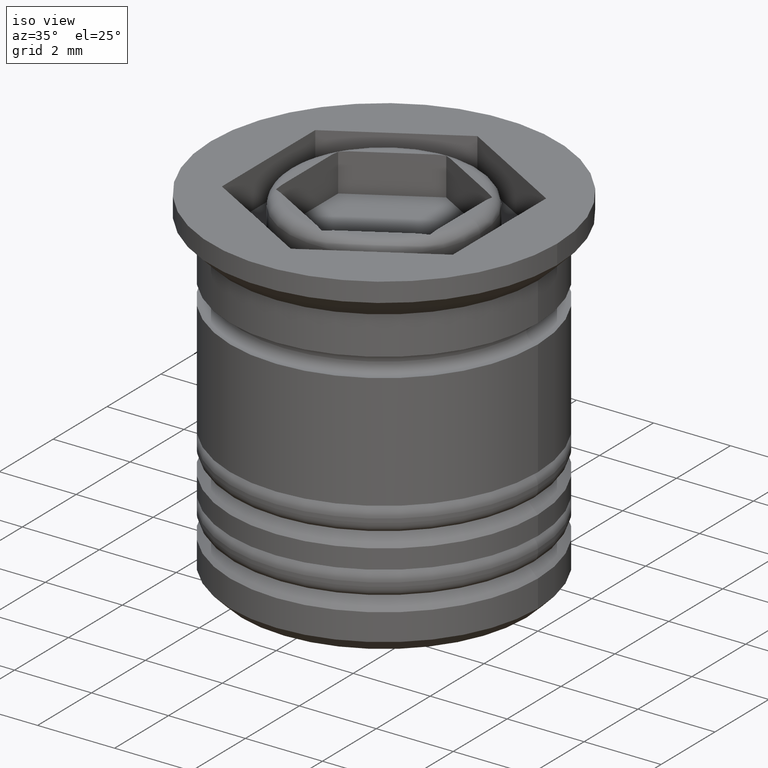
[diagram: clean part render]
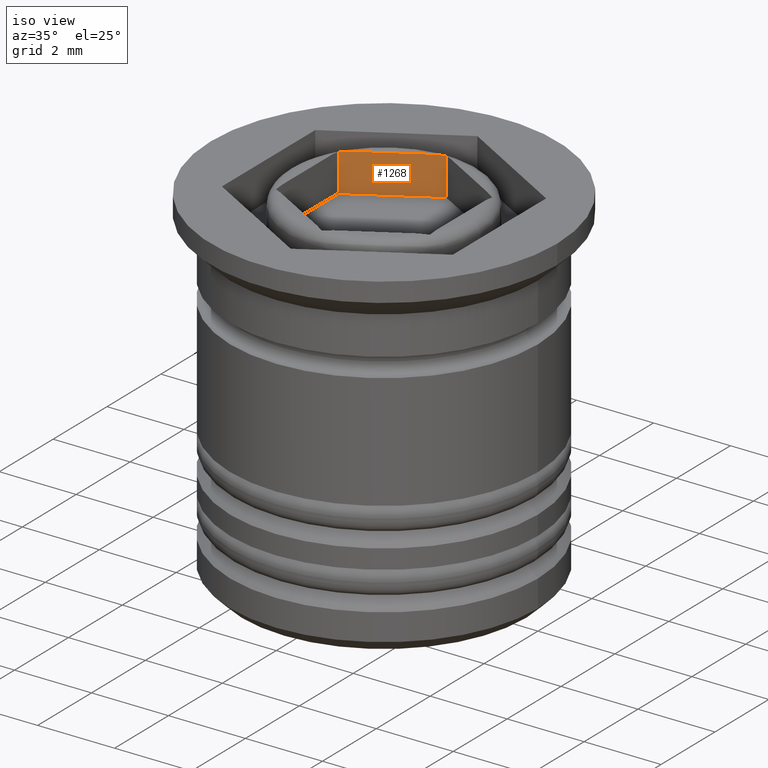
[diagram: same view with one face highlighted and labeled with its STEP entity id]
A machine part, iso view. The second image highlights one B-rep face of the part: STEP entity #1268.
In plain terms, the highlighted planar face has unit normal (-0.5, 0.866, 0).
Its self-contained STEP definition (entity closure, byte-faithful):
#109 = B_SPLINE_CURVE_WITH_KNOTS ( 'NONE', 3,
 ( #1273, #1421, #499, #1400 ),
 .UNSPECIFIED., .F., .F.,
 ( 4, 4 ),
 ( 2.174422272890622232E-19, 0.0002390796478456415591 ),
 .UNSPECIFIED. ) ;
#153 = LINE ( 'NONE', #1110, #647 ) ;
#177 = EDGE_CURVE ( 'NONE', #696, #1252, #109, .T. ) ;
#214 = ORIENTED_EDGE ( 'NONE', *, *, #470, .T. ) ;
#227 = VECTOR ( 'NONE', #595, 1000.000000000000000 ) ;
#324 = CARTESIAN_POINT ( 'NONE',  ( 0.000000000000000000, 2.309401076758503368, -1.000000000000000000 ) ) ;
#333 = DIRECTION ( 'NONE',  ( -0.000000000000000000, -0.000000000000000000, 1.000000000000000000 ) ) ;
#403 = FACE_OUTER_BOUND ( 'NONE', #1995, .T. ) ;
#413 = LINE ( 'NONE', #1187, #227 ) ;
#470 = EDGE_CURVE ( 'NONE', #938, #674, #1676, .T. ) ;
#499 = CARTESIAN_POINT ( 'NONE',  ( -1.931881487280481702, 1.194028780034662729, -0.005256474890640332881 ) ) ;
#568 = CARTESIAN_POINT ( 'NONE',  ( 0.000000000000000000, 2.309401076758503368, -1.000000000000000000 ) ) ;
#595 = DIRECTION ( 'NONE',  ( -0.000000000000000000, -0.000000000000000000, 1.000000000000000000 ) ) ;
#631 = EDGE_CURVE ( 'NONE', #1428, #696, #153, .T. ) ;
#647 = VECTOR ( 'NONE', #1734, 1000.000000000000114 ) ;
#674 = VERTEX_POINT ( 'NONE', #324 ) ;
#696 = VERTEX_POINT ( 'NONE', #1552 ) ;
#720 = DIRECTION ( 'NONE',  ( 0.8660254037844385966, 0.4999999999999998890, -0.000000000000000000 ) ) ;
#864 = ORIENTED_EDGE ( 'NONE', *, *, #1746, .T. ) ;
#935 = CARTESIAN_POINT ( 'NONE',  ( 0.000000000000000000, 2.309401076758503368, -7.110100926607787919 ) ) ;
#938 = VERTEX_POINT ( 'NONE', #1532 ) ;
#1024 = CARTESIAN_POINT ( 'NONE',  ( -2.000000000000000444, 1.154700538379251462, -0.02065898188042571137 ) ) ;
#1105 = CARTESIAN_POINT ( 'NONE',  ( 0.000000000000000000, 2.309401076758503368, -0.02065898188042571137 ) ) ;
#1110 = CARTESIAN_POINT ( 'NONE',  ( 0.000000000000000000, 2.309401076758503368, 0.000000000000000000 ) ) ;
#1173 = CARTESIAN_POINT ( 'NONE',  ( -0.1369991406722239902, 2.230304586012647583, 2.874465159271312722E-18 ) ) ;
#1187 = CARTESIAN_POINT ( 'NONE',  ( -2.000000000000000444, 1.154700538379251462, -7.110100926607787919 ) ) ;
#1195 = CARTESIAN_POINT ( 'NONE',  ( -0.06811851271951871456, 2.270072835103092324, -0.005256474890640268696 ) ) ;
#1224 = ORIENTED_EDGE ( 'NONE', *, *, #177, .T. ) ;
#1252 = VERTEX_POINT ( 'NONE', #1024 ) ;
#1258 = EDGE_CURVE ( 'NONE', #938, #1252, #413, .T. ) ;
#1268 = ADVANCED_FACE ( 'NONE', ( #403 ), #1363, .F. ) ;
#1273 = CARTESIAN_POINT ( 'NONE',  ( -1.793725393319378858, 1.273793238073292589, 0.000000000000000000 ) ) ;
#1337 = CARTESIAN_POINT ( 'NONE',  ( -0.2062746066806214196, 2.190308377064462242, 0.000000000000000000 ) ) ;
#1360 = CARTESIAN_POINT ( 'NONE',  ( 0.000000000000000000, 2.309401076758503368, -0.02065898188042571137 ) ) ;
#1363 = PLANE ( 'NONE',  #1740 ) ;
#1400 = CARTESIAN_POINT ( 'NONE',  ( -2.000000000000000444, 1.154700538379251462, -0.02065898188042571137 ) ) ;
#1414 = B_SPLINE_CURVE_WITH_KNOTS ( 'NONE', 3,
 ( #1360, #1195, #1173, #1337 ),
 .UNSPECIFIED., .F., .F.,
 ( 4, 4 ),
 ( 1.212469994430350270E-20, 0.0002390796478456412881 ),
 .UNSPECIFIED. ) ;
#1421 = CARTESIAN_POINT ( 'NONE',  ( -1.863000859327776260, 1.233797029125107247, -7.123549657312952816E-17 ) ) ;
#1428 = VERTEX_POINT ( 'NONE', #1441 ) ;
#1441 = CARTESIAN_POINT ( 'NONE',  ( -0.2062746066806214196, 2.190308377064462242, 0.000000000000000000 ) ) ;
#1532 = CARTESIAN_POINT ( 'NONE',  ( -2.000000000000000444, 1.154700538379251462, -1.000000000000000000 ) ) ;
#1552 = CARTESIAN_POINT ( 'NONE',  ( -1.793725393319378858, 1.273793238073292589, 0.000000000000000000 ) ) ;
#1592 = EDGE_CURVE ( 'NONE', #1787, #1428, #1414, .T. ) ;
#1647 = ORIENTED_EDGE ( 'NONE', *, *, #1258, .F. ) ;
#1655 = DIRECTION ( 'NONE',  ( -0.8660254037844387076, -0.4999999999999999445, 0.000000000000000000 ) ) ;
#1676 = LINE ( 'NONE', #568, #1736 ) ;
#1734 = DIRECTION ( 'NONE',  ( -0.8660254037844385966, -0.4999999999999999445, 0.000000000000000000 ) ) ;
#1736 = VECTOR ( 'NONE', #720, 1000.000000000000227 ) ;
#1740 = AXIS2_PLACEMENT_3D ( 'NONE', #2006, #1851, #1655 ) ;
#1742 = LINE ( 'NONE', #935, #1774 ) ;
#1746 = EDGE_CURVE ( 'NONE', #674, #1787, #1742, .T. ) ;
#1774 = VECTOR ( 'NONE', #333, 1000.000000000000000 ) ;
#1787 = VERTEX_POINT ( 'NONE', #1105 ) ;
#1851 = DIRECTION ( 'NONE',  ( -0.4999999999999999445, 0.8660254037844387076, 0.000000000000000000 ) ) ;
#1906 = ORIENTED_EDGE ( 'NONE', *, *, #631, .T. ) ;
#1914 = ORIENTED_EDGE ( 'NONE', *, *, #1592, .T. ) ;
#1995 = EDGE_LOOP ( 'NONE', ( #864, #1914, #1906, #1224, #1647, #214 ) ) ;
#2006 = CARTESIAN_POINT ( 'NONE',  ( 0.000000000000000000, 2.309401076758503368, -7.110100926607787919 ) ) ;